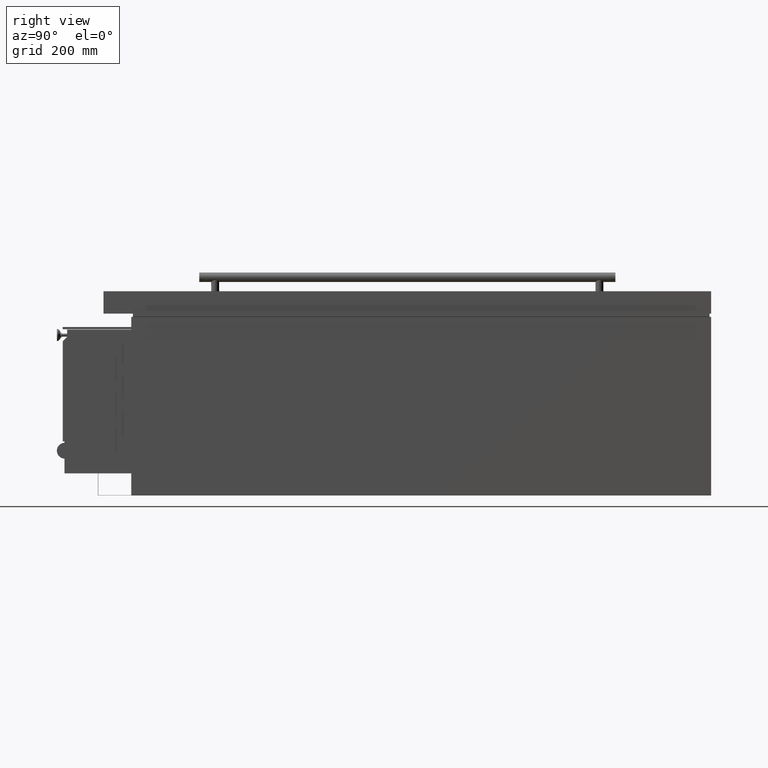
[diagram: clean part render]
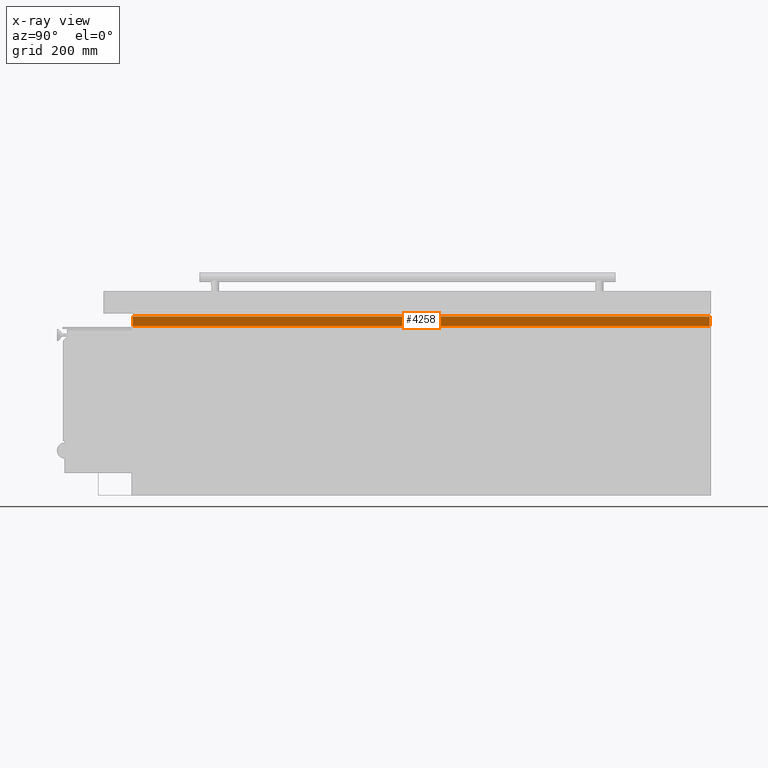
[diagram: x-ray — body ghosted, one internal face saturated and labeled with its STEP entity id]
A machine part, right view, then the same camera in x-ray: the body is ghosted and one INTERNAL B-rep face — a face not visible from any outside direction — is saturated and labeled: STEP entity #4258.
In plain terms, the highlighted planar face has unit normal (1, 0, -0).
Its self-contained STEP definition (entity closure, byte-faithful):
#276 = PLANE ( 'NONE',  #2189 ) ;
#565 = VERTEX_POINT ( 'NONE', #3157 ) ;
#965 = VERTEX_POINT ( 'NONE', #4723 ) ;
#969 = DIRECTION ( 'NONE',  ( 0.0000000000000000000, 0.0000000000000000000, -1.000000000000000000 ) ) ;
#1043 = DIRECTION ( 'NONE',  ( 0.0000000000000000000, 2.775557561562891700E-015, -1.000000000000000000 ) ) ;
#1433 = VERTEX_POINT ( 'NONE', #5561 ) ;
#1531 = EDGE_CURVE ( 'NONE', #1433, #965, #3107, .T. ) ;
#1545 = EDGE_CURVE ( 'NONE', #5887, #565, #7626, .T. ) ;
#1670 = LINE ( 'NONE', #9411, #2175 ) ;
#2175 = VECTOR ( 'NONE', #2206, 1000.000000000000000 ) ;
#2189 = AXIS2_PLACEMENT_3D ( 'NONE', #8241, #6784, #3437 ) ;
#2206 = DIRECTION ( 'NONE',  ( 0.0000000000000000000, -1.000000000000000000, -0.0000000000000000000 ) ) ;
#2739 = EDGE_CURVE ( 'NONE', #1433, #5887, #3081, .T. ) ;
#3000 = CARTESIAN_POINT ( 'NONE',  ( 368.0000000000000000, 1065.901327281558700, 280.4999999500002400 ) ) ;
#3003 = ORIENTED_EDGE ( 'NONE', *, *, #1545, .F. ) ;
#3081 = LINE ( 'NONE', #3000, #7715 ) ;
#3107 = LINE ( 'NONE', #9793, #8988 ) ;
#3157 = CARTESIAN_POINT ( 'NONE',  ( 368.0000000000000000, -796.1499999999996400, 250.0000030000001900 ) ) ;
#3437 = DIRECTION ( 'NONE',  ( 0.0000000000000000000, 0.0000000000000000000, 1.000000000000000000 ) ) ;
#4258 = ADVANCED_FACE ( 'NONE', ( #4411 ), #276, .F. ) ;
#4411 = FACE_OUTER_BOUND ( 'NONE', #7585, .T. ) ;
#4723 = CARTESIAN_POINT ( 'NONE',  ( 368.0000000000000000, 1010.850000000000000, 250.0000030000001900 ) ) ;
#4747 = VECTOR ( 'NONE', #1043, 1000.000000000000000 ) ;
#5202 = ORIENTED_EDGE ( 'NONE', *, *, #2739, .F. ) ;
#5561 = CARTESIAN_POINT ( 'NONE',  ( 368.0000000000000000, 1010.850000000000000, 280.4999999500002400 ) ) ;
#5850 = CARTESIAN_POINT ( 'NONE',  ( 368.0000000000000000, -796.1499999999996400, 250.0000030000003600 ) ) ;
#5887 = VERTEX_POINT ( 'NONE', #7478 ) ;
#6784 = DIRECTION ( 'NONE',  ( 1.000000000000000000, 0.0000000000000000000, -0.0000000000000000000 ) ) ;
#7325 = ORIENTED_EDGE ( 'NONE', *, *, #1531, .T. ) ;
#7478 = CARTESIAN_POINT ( 'NONE',  ( 368.0000000000000000, -796.1499999999997500, 280.4999999500002400 ) ) ;
#7585 = EDGE_LOOP ( 'NONE', ( #7325, #10369, #3003, #5202 ) ) ;
#7626 = LINE ( 'NONE', #5850, #4747 ) ;
#7715 = VECTOR ( 'NONE', #9656, 1000.000000000000000 ) ;
#7881 = EDGE_CURVE ( 'NONE', #965, #565, #1670, .T. ) ;
#8241 = CARTESIAN_POINT ( 'NONE',  ( 368.0000000000000000, 1065.901327281558700, 250.0000030000001900 ) ) ;
#8988 = VECTOR ( 'NONE', #969, 1000.000000000000000 ) ;
#9411 = CARTESIAN_POINT ( 'NONE',  ( 368.0000000000000000, 1065.901327281558700, 250.0000030000001900 ) ) ;
#9656 = DIRECTION ( 'NONE',  ( 0.0000000000000000000, -1.000000000000000000, -0.0000000000000000000 ) ) ;
#9793 = CARTESIAN_POINT ( 'NONE',  ( 368.0000000000000000, 1010.850000000000000, 250.0000030000001900 ) ) ;
#10369 = ORIENTED_EDGE ( 'NONE', *, *, #7881, .T. ) ;